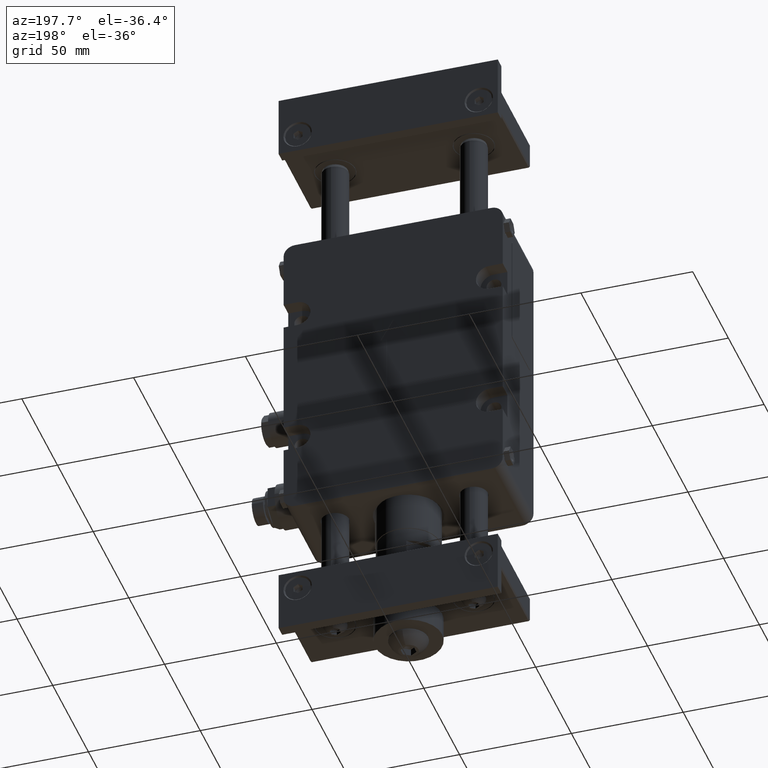
[diagram: clean part render]
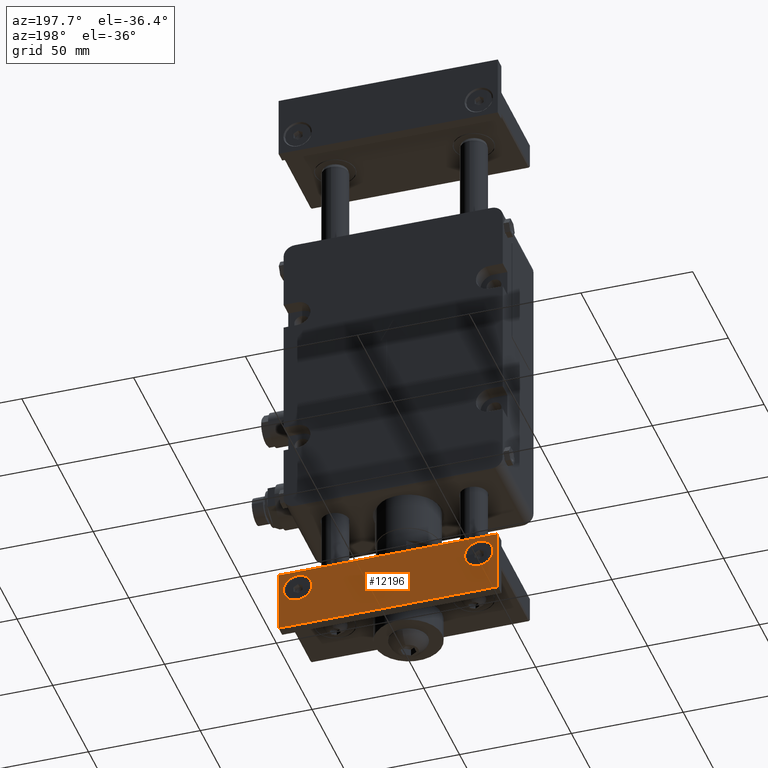
[diagram: same view with one face highlighted and labeled with its STEP entity id]
A machine part, auxiliary view. The second image highlights one B-rep face of the part: STEP entity #12196.
In plain terms, the highlighted planar face has unit normal (-0, 1, 0).
Its self-contained STEP definition (entity closure, byte-faithful):
#539 = ORIENTED_EDGE ( 'NONE', *, *, #54217, .T. ) ;
#1461 = EDGE_CURVE ( 'NONE', #32619, #19923, #18772, .T. ) ;
#2655 = FACE_OUTER_BOUND ( 'NONE', #13520, .T. ) ;
#3697 = AXIS2_PLACEMENT_3D ( 'NONE', #10723, #14567, #6063 ) ;
#4639 = VERTEX_POINT ( 'NONE', #52103 ) ;
#5132 = DIRECTION ( 'NONE',  ( 3.660075143236654774E-16, -4.517041674683839957E-16, 1.000000000000000000 ) ) ;
#6063 = DIRECTION ( 'NONE',  ( -1.000000000000000000, -1.092739197465705090E-15, 0.000000000000000000 ) ) ;
#6681 = CARTESIAN_POINT ( 'NONE',  ( 49.00000000000000000, 50.00000000000000000, -68.50000000000000000 ) ) ;
#6746 = DIRECTION ( 'NONE',  ( -1.316655118266390077E-15, 1.000000000000000000, 4.517041674683769946E-16 ) ) ;
#7030 = ORIENTED_EDGE ( 'NONE', *, *, #17968, .F. ) ;
#7395 = CIRCLE ( 'NONE', #34599, 6.350000000000001421 ) ;
#8903 = EDGE_CURVE ( 'NONE', #39069, #29148, #41934, .T. ) ;
#10062 = DIRECTION ( 'NONE',  ( -1.000000000000000000, -1.092739197465705090E-15, 0.000000000000000000 ) ) ;
#10723 = CARTESIAN_POINT ( 'NONE',  ( 40.50000000000000000, 50.00000000000000000, -49.00000000000000000 ) ) ;
#11265 = VECTOR ( 'NONE', #29304, 1000.000000000000000 ) ;
#12196 = ADVANCED_FACE ( 'NONE', ( #44391, #32260, #2655 ), #19646, .T. ) ;
#13520 = EDGE_LOOP ( 'NONE', ( #26536, #52833, #539, #39095 ) ) ;
#13806 = CIRCLE ( 'NONE', #41865, 6.350000000000001421 ) ;
#14181 = CARTESIAN_POINT ( 'NONE',  ( -49.00000000000000000, 50.00000000000000000, -68.50000000000000000 ) ) ;
#14513 = EDGE_CURVE ( 'NONE', #48001, #36211, #18561, .T. ) ;
#14567 = DIRECTION ( 'NONE',  ( -1.092739197465704104E-15, 1.000000000000000000, 4.517041674683769946E-16 ) ) ;
#14653 = DIRECTION ( 'NONE',  ( -3.660075143236654774E-16, 4.517041674683839957E-16, -1.000000000000000000 ) ) ;
#15301 = DIRECTION ( 'NONE',  ( -1.000000000000000000, -1.092739197465705090E-15, 0.000000000000000000 ) ) ;
#15343 = CARTESIAN_POINT ( 'NONE',  ( -46.85000000000000142, 50.00000000000000000, -49.00000000000000000 ) ) ;
#15609 = CARTESIAN_POINT ( 'NONE',  ( 49.00000000000000000, 50.00000000000000000, -68.50000000000000000 ) ) ;
#17968 = EDGE_CURVE ( 'NONE', #29148, #39069, #7395, .T. ) ;
#18094 = CARTESIAN_POINT ( 'NONE',  ( -40.50000000000000000, 50.00000000000000000, -49.00000000000000000 ) ) ;
#18561 = CIRCLE ( 'NONE', #3697, 6.350000000000001421 ) ;
#18772 = LINE ( 'NONE', #6681, #22587 ) ;
#19646 = PLANE ( 'NONE',  #36044 ) ;
#19810 = ORIENTED_EDGE ( 'NONE', *, *, #8903, .F. ) ;
#19923 = VERTEX_POINT ( 'NONE', #15609 ) ;
#21102 = CARTESIAN_POINT ( 'NONE',  ( 46.85000000000000142, 50.00000000000000000, -49.00000000000000000 ) ) ;
#22079 = CARTESIAN_POINT ( 'NONE',  ( 49.00000000000000000, 50.00000000000000000, -68.50000000000000000 ) ) ;
#22587 = VECTOR ( 'NONE', #14653, 1000.000000000000000 ) ;
#22894 = LINE ( 'NONE', #22079, #45791 ) ;
#23806 = DIRECTION ( 'NONE',  ( -1.092739197465704104E-15, 1.000000000000000000, 4.517041674683769946E-16 ) ) ;
#26039 = EDGE_LOOP ( 'NONE', ( #19810, #7030 ) ) ;
#26536 = ORIENTED_EDGE ( 'NONE', *, *, #33591, .T. ) ;
#28597 = EDGE_CURVE ( 'NONE', #36211, #48001, #13806, .T. ) ;
#28958 = ORIENTED_EDGE ( 'NONE', *, *, #28597, .F. ) ;
#29148 = VERTEX_POINT ( 'NONE', #50135 ) ;
#29304 = DIRECTION ( 'NONE',  ( 1.000000000000000000, 1.316655118266390077E-15, -3.660075143236609907E-16 ) ) ;
#30447 = DIRECTION ( 'NONE',  ( -1.092739197465704104E-15, 1.000000000000000000, 4.517041674683769946E-16 ) ) ;
#30934 = CARTESIAN_POINT ( 'NONE',  ( 40.50000000000000000, 50.00000000000000000, -49.00000000000000000 ) ) ;
#31378 = VECTOR ( 'NONE', #5132, 1000.000000000000000 ) ;
#32260 = FACE_BOUND ( 'NONE', #26039, .T. ) ;
#32619 = VERTEX_POINT ( 'NONE', #50275 ) ;
#33148 = AXIS2_PLACEMENT_3D ( 'NONE', #36433, #23806, #15301 ) ;
#33591 = EDGE_CURVE ( 'NONE', #19923, #4639, #22894, .T. ) ;
#34509 = LINE ( 'NONE', #14181, #31378 ) ;
#34599 = AXIS2_PLACEMENT_3D ( 'NONE', #18094, #30447, #34848 ) ;
#34848 = DIRECTION ( 'NONE',  ( -1.000000000000000000, -1.092739197465705090E-15, 0.000000000000000000 ) ) ;
#36028 = CARTESIAN_POINT ( 'NONE',  ( -49.00000000000000000, 50.00000000000000000, -40.50000000000000000 ) ) ;
#36044 = AXIS2_PLACEMENT_3D ( 'NONE', #49042, #6746, #48513 ) ;
#36211 = VERTEX_POINT ( 'NONE', #21102 ) ;
#36433 = CARTESIAN_POINT ( 'NONE',  ( -40.50000000000000000, 50.00000000000000000, -49.00000000000000000 ) ) ;
#37757 = VERTEX_POINT ( 'NONE', #36028 ) ;
#39069 = VERTEX_POINT ( 'NONE', #15343 ) ;
#39095 = ORIENTED_EDGE ( 'NONE', *, *, #1461, .T. ) ;
#41865 = AXIS2_PLACEMENT_3D ( 'NONE', #30934, #47726, #10062 ) ;
#41934 = CIRCLE ( 'NONE', #33148, 6.350000000000001421 ) ;
#44391 = FACE_BOUND ( 'NONE', #47342, .T. ) ;
#44948 = ORIENTED_EDGE ( 'NONE', *, *, #14513, .F. ) ;
#45791 = VECTOR ( 'NONE', #51753, 1000.000000000000000 ) ;
#46366 = CARTESIAN_POINT ( 'NONE',  ( 49.00000000000000000, 50.00000000000000000, -40.50000000000000000 ) ) ;
#47342 = EDGE_LOOP ( 'NONE', ( #44948, #28958 ) ) ;
#47726 = DIRECTION ( 'NONE',  ( -1.092739197465704104E-15, 1.000000000000000000, 4.517041674683769946E-16 ) ) ;
#48001 = VERTEX_POINT ( 'NONE', #53526 ) ;
#48513 = DIRECTION ( 'NONE',  ( 1.000000000000000000, 1.316655118266390077E-15, 0.000000000000000000 ) ) ;
#49042 = CARTESIAN_POINT ( 'NONE',  ( -49.00000000000000000, 50.00000000000000000, -68.50000000000000000 ) ) ;
#50135 = CARTESIAN_POINT ( 'NONE',  ( -34.14999999999999858, 50.00000000000000000, -49.00000000000000000 ) ) ;
#50275 = CARTESIAN_POINT ( 'NONE',  ( 49.00000000000000000, 50.00000000000000000, -40.50000000000000000 ) ) ;
#51753 = DIRECTION ( 'NONE',  ( -1.000000000000000000, -1.316655118266390077E-15, 3.660075143236609907E-16 ) ) ;
#52103 = CARTESIAN_POINT ( 'NONE',  ( -49.00000000000000000, 50.00000000000000000, -68.50000000000000000 ) ) ;
#52833 = ORIENTED_EDGE ( 'NONE', *, *, #53383, .T. ) ;
#53383 = EDGE_CURVE ( 'NONE', #4639, #37757, #34509, .T. ) ;
#53526 = CARTESIAN_POINT ( 'NONE',  ( 34.14999999999999858, 50.00000000000000000, -49.00000000000000000 ) ) ;
#54048 = LINE ( 'NONE', #46366, #11265 ) ;
#54217 = EDGE_CURVE ( 'NONE', #37757, #32619, #54048, .T. ) ;